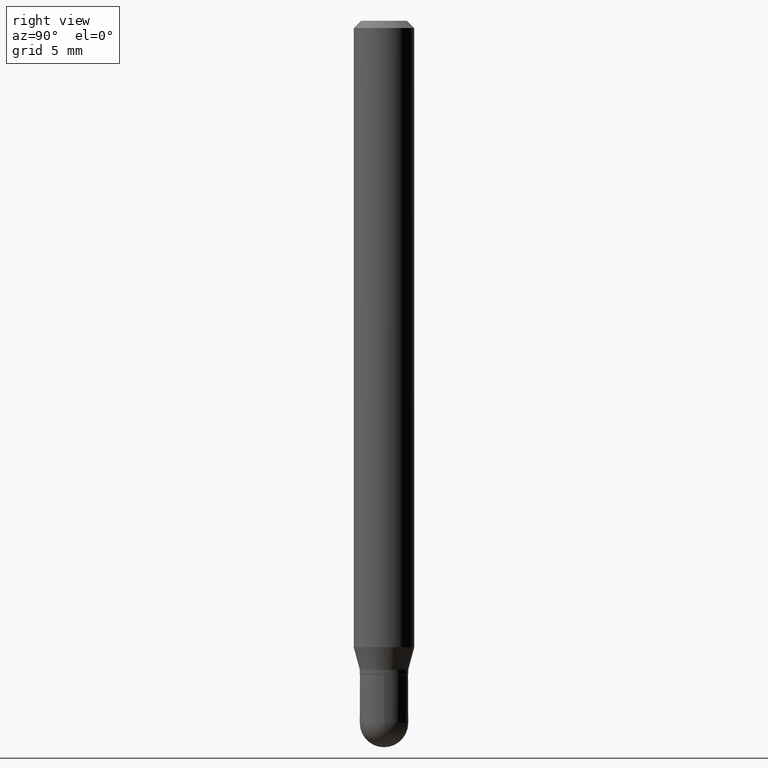
[diagram: clean part render]
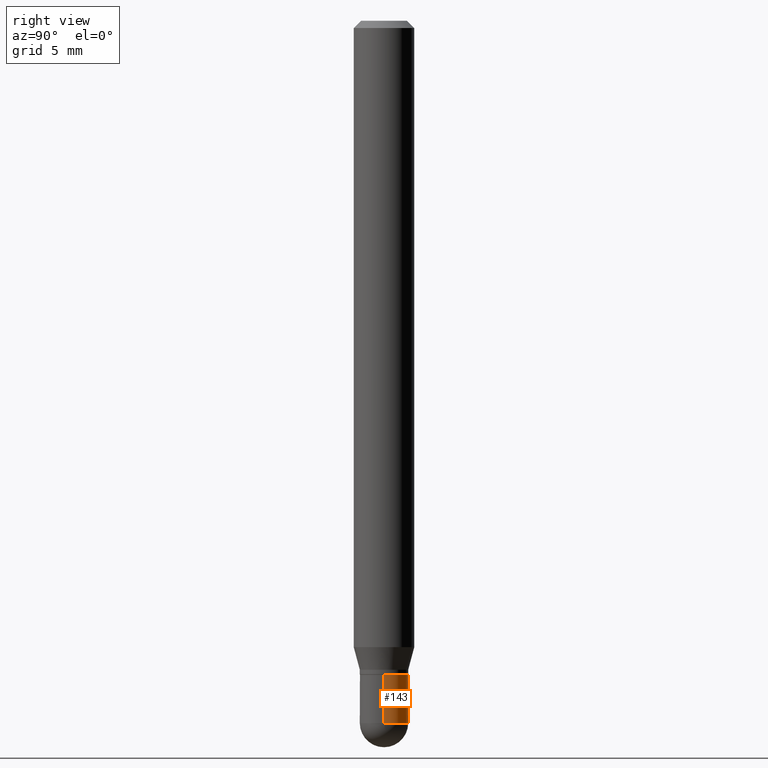
[diagram: same view with one face highlighted and labeled with its STEP entity id]
A machine part, right view. The second image highlights one B-rep face of the part: STEP entity #143.
In plain terms, the highlighted cylindrical surface (edge-blend (fillet) strip) has radius 1.27 mm, axis along (-0, 0, 1).
Its self-contained STEP definition (entity closure, byte-faithful):
#8 = VERTEX_POINT ( 'NONE', #455 ) ;
#11 = CARTESIAN_POINT ( 'NONE',  ( 3.301382888349935078E-29, -4.713499807438246596E-15, -1.350000000000000089 ) ) ;
#48 = CARTESIAN_POINT ( 'NONE',  ( 0.05000000000000000278, -5.062647941322559931E-15, -1.350000000000000089 ) ) ;
#80 = CIRCLE ( 'NONE', #251, 0.04999999999999999584 ) ;
#88 = EDGE_CURVE ( 'NONE', #8, #224, #142, .T. ) ;
#115 = AXIS2_PLACEMENT_3D ( 'NONE', #11, #336, #300 ) ;
#123 = DIRECTION ( 'NONE',  ( -2.445468806185136597E-29, 3.491481338843145583E-15, 1.000000000000000000 ) ) ;
#124 = LINE ( 'NONE', #344, #464 ) ;
#137 = ORIENTED_EDGE ( 'NONE', *, *, #88, .T. ) ;
#142 = CIRCLE ( 'NONE', #348, 0.04999999999999999584 ) ;
#143 = ADVANCED_FACE ( 'NONE', ( #233 ), #200, .T. ) ;
#161 = CARTESIAN_POINT ( 'NONE',  ( -0.04999999999999999584, 3.552713678800500634E-16, -2.459467545127452961E-30 ) ) ;
#165 = DIRECTION ( 'NONE',  ( -2.445468806185136877E-29, 3.491481338843145188E-15, 1.000000000000000000 ) ) ;
#176 = DIRECTION ( 'NONE',  ( -2.445468806185136877E-29, 3.491481338843145188E-15, 1.000000000000000000 ) ) ;
#180 = EDGE_LOOP ( 'NONE', ( #137, #483, #316, #192, #414 ) ) ;
#187 = EDGE_CURVE ( 'NONE', #306, #339, #124, .T. ) ;
#188 = CARTESIAN_POINT ( 'NONE',  ( 0.000000000000000000, 0.000000000000000000, 0.000000000000000000 ) ) ;
#192 = ORIENTED_EDGE ( 'NONE', *, *, #187, .F. ) ;
#200 = CYLINDRICAL_SURFACE ( 'NONE', #366, 0.04999999999999999584 ) ;
#202 = LINE ( 'NONE', #161, #227 ) ;
#208 = DIRECTION ( 'NONE',  ( -2.445468806185136597E-29, 3.491481338843145583E-15, 1.000000000000000000 ) ) ;
#212 = EDGE_CURVE ( 'NONE', #339, #261, #241, .T. ) ;
#215 = CARTESIAN_POINT ( 'NONE',  ( -0.04999999999999999584, -4.532802506500353644E-15, -1.450000000000000178 ) ) ;
#220 = DIRECTION ( 'NONE',  ( 1.000000000000000000, -6.982962677686265922E-15, 4.876176775795936353E-29 ) ) ;
#224 = VERTEX_POINT ( 'NONE', #215 ) ;
#227 = VECTOR ( 'NONE', #165, 39.37007874015748143 ) ;
#233 = FACE_OUTER_BOUND ( 'NONE', #180, .T. ) ;
#234 = CARTESIAN_POINT ( 'NONE',  ( 3.545929768968448850E-29, -5.062647941322561509E-15, -1.450000000000000178 ) ) ;
#241 = CIRCLE ( 'NONE', #115, 0.05000000000000000278 ) ;
#245 = CARTESIAN_POINT ( 'NONE',  ( 3.545929768968448850E-29, -5.062647941322561509E-15, -1.450000000000000178 ) ) ;
#251 = AXIS2_PLACEMENT_3D ( 'NONE', #234, #208, #511 ) ;
#261 = VERTEX_POINT ( 'NONE', #397 ) ;
#294 = EDGE_CURVE ( 'NONE', #224, #261, #202, .T. ) ;
#300 = DIRECTION ( 'NONE',  ( 1.000000000000000000, -6.982962677686274599E-15, 0.000000000000000000 ) ) ;
#306 = VERTEX_POINT ( 'NONE', #466 ) ;
#316 = ORIENTED_EDGE ( 'NONE', *, *, #212, .F. ) ;
#327 = DIRECTION ( 'NONE',  ( -2.445468806185136597E-29, 3.491481338843145583E-15, 1.000000000000000000 ) ) ;
#336 = DIRECTION ( 'NONE',  ( -2.445468806185136597E-29, 3.491481338843145583E-15, 1.000000000000000000 ) ) ;
#339 = VERTEX_POINT ( 'NONE', #48 ) ;
#344 = CARTESIAN_POINT ( 'NONE',  ( 0.04999999999999999584, -3.491481338843132862E-16, 2.438088387897967896E-30 ) ) ;
#348 = AXIS2_PLACEMENT_3D ( 'NONE', #245, #123, #480 ) ;
#366 = AXIS2_PLACEMENT_3D ( 'NONE', #188, #327, #220 ) ;
#397 = CARTESIAN_POINT ( 'NONE',  ( -0.05000000000000000278, -4.532802506500353644E-15, -1.350000000000000089 ) ) ;
#399 = EDGE_CURVE ( 'NONE', #306, #8, #80, .T. ) ;
#414 = ORIENTED_EDGE ( 'NONE', *, *, #399, .T. ) ;
#455 = CARTESIAN_POINT ( 'NONE',  ( 3.552713678800859565E-16, 0.04999999999999501371, -1.450000000000000400 ) ) ;
#464 = VECTOR ( 'NONE', #176, 39.37007874015748143 ) ;
#466 = CARTESIAN_POINT ( 'NONE',  ( 0.04999999999999999584, -5.237222008264717388E-15, -1.450000000000000178 ) ) ;
#480 = DIRECTION ( 'NONE',  ( 1.000000000000000000, -6.982962677686275388E-15, 0.000000000000000000 ) ) ;
#483 = ORIENTED_EDGE ( 'NONE', *, *, #294, .T. ) ;
#511 = DIRECTION ( 'NONE',  ( 1.000000000000000000, -6.982962677686275388E-15, 0.000000000000000000 ) ) ;